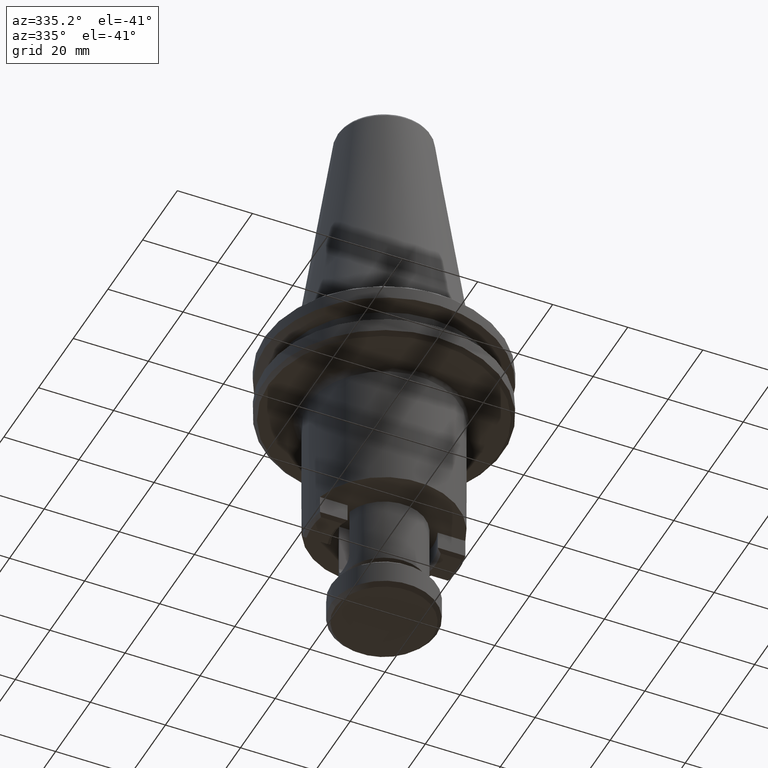
[diagram: clean part render]
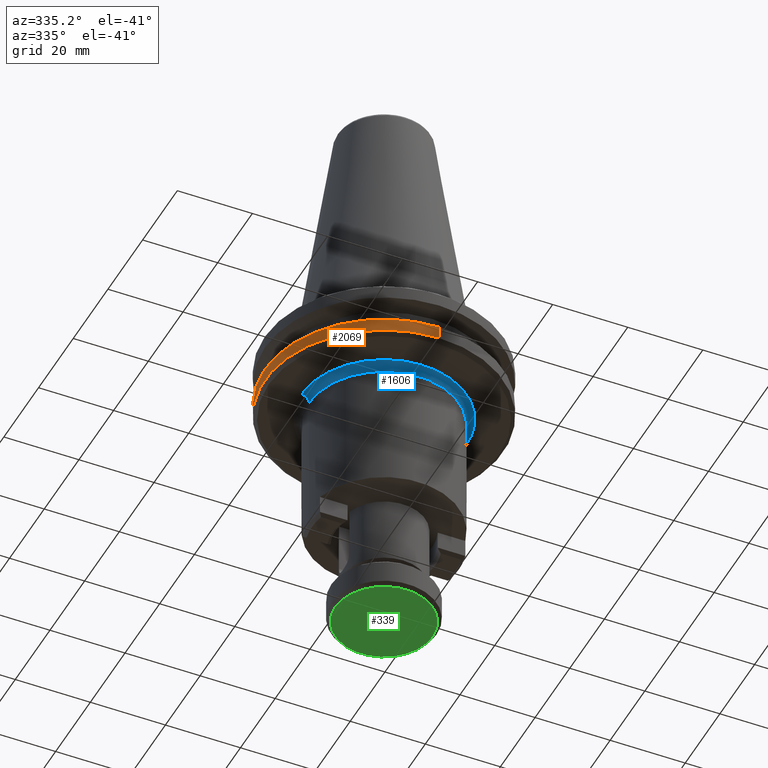
[diagram: same view with three faces highlighted in distinct colors, each labeled with its STEP entity id]
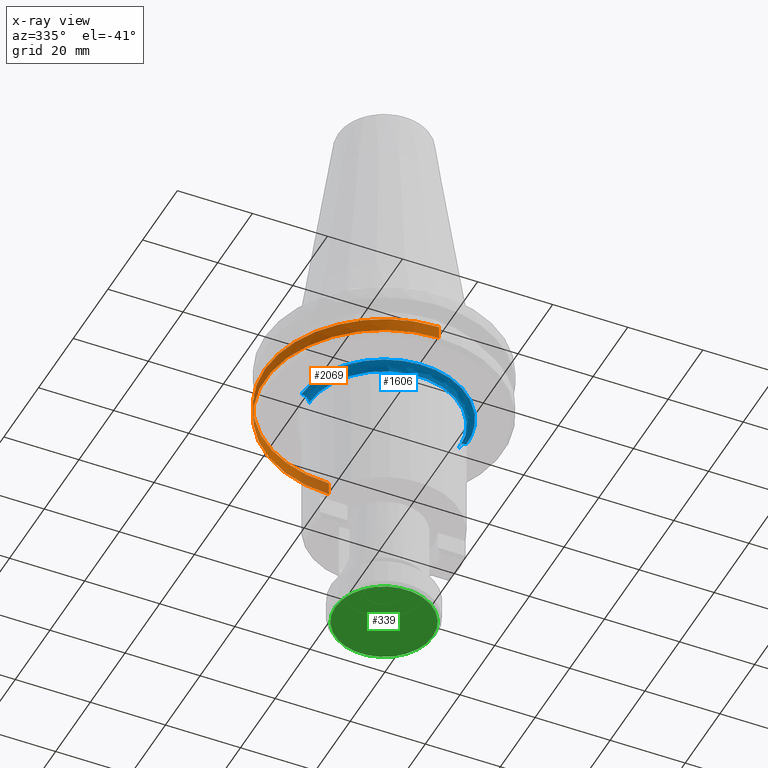
[diagram: x-ray of the same camera — body ghosted, the three highlighted faces saturated]
A machine part, auxiliary view with three faces highlighted in distinct colors.
The next image is the same camera in x-ray (body ghosted, the three faces saturated) — at least one of them is partly hidden behind the body in this view.
Their STEP definitions:

[orange] entity #2069 — the highlighted cylindrical surface (partial cylindrical patch) has radius 31.75 mm, axis along (0, -0, 1).
#8 = EDGE_CURVE ( 'NONE', #2531, #1006, #46, .T. ) ;
#27 = CIRCLE ( 'NONE', #694, 31.74999999990910000 ) ;
#41 = CARTESIAN_POINT ( 'NONE',  ( 73.31616413349898700, 117.8106910111748100, 72.64596896614378400 ) ) ;
#46 = CIRCLE ( 'NONE', #2822, 31.75000000000000000 ) ;
#172 = DIRECTION ( 'NONE',  ( -0.0000000000000000000, -2.997010603902405300E-017, 1.000000000000000000 ) ) ;
#267 = DIRECTION ( 'NONE',  ( 0.0000000000000000000, -1.000000000000000000, 0.0000000000000000000 ) ) ;
#317 = AXIS2_PLACEMENT_3D ( 'NONE', #448, #406, #536 ) ;
#406 = DIRECTION ( 'NONE',  ( 0.0000000000000000000, -5.463695987328526400E-017, 1.000000000000000000 ) ) ;
#421 = DIRECTION ( 'NONE',  ( -0.0000000000000000000, -2.997010603902405300E-017, 1.000000000000000000 ) ) ;
#435 = DIRECTION ( 'NONE',  ( 0.0000000000000000000, 1.000000000000000000, 0.0000000000000000000 ) ) ;
#448 = CARTESIAN_POINT ( 'NONE',  ( 73.31616413349898700, 86.06069101126570300, 69.16780560809130000 ) ) ;
#451 = CARTESIAN_POINT ( 'NONE',  ( 73.31616413349898700, 86.06069101126570300, 72.64596896614378400 ) ) ;
#507 = ORIENTED_EDGE ( 'NONE', *, *, #1408, .F. ) ;
#532 = ORIENTED_EDGE ( 'NONE', *, *, #1786, .T. ) ;
#536 = DIRECTION ( 'NONE',  ( 0.0000000000000000000, -1.000000000000000000, 0.0000000000000000000 ) ) ;
#628 = VERTEX_POINT ( 'NONE', #1771 ) ;
#654 = AXIS2_PLACEMENT_3D ( 'NONE', #828, #172, #435 ) ;
#694 = AXIS2_PLACEMENT_3D ( 'NONE', #451, #421, #2606 ) ;
#828 = CARTESIAN_POINT ( 'NONE',  ( 73.31616413349898700, 86.06069101126570300, 72.64596896614378400 ) ) ;
#847 = EDGE_CURVE ( 'NONE', #628, #1720, #27, .T. ) ;
#960 = CARTESIAN_POINT ( 'NONE',  ( 73.31616413349898700, 117.8106910112657000, 69.16780560809130000 ) ) ;
#1002 = VECTOR ( 'NONE', #1576, 1000.000000000000000 ) ;
#1006 = VERTEX_POINT ( 'NONE', #1492 ) ;
#1007 = LINE ( 'NONE', #1464, #1002 ) ;
#1017 = DIRECTION ( 'NONE',  ( 0.0000000000000000000, -5.463695987328526400E-017, 1.000000000000000000 ) ) ;
#1026 = ORIENTED_EDGE ( 'NONE', *, *, #847, .F. ) ;
#1142 = CARTESIAN_POINT ( 'NONE',  ( 73.31616413349898700, 54.31069101126570300, 69.16780560809130000 ) ) ;
#1292 = EDGE_CURVE ( 'NONE', #1744, #628, #1976, .T. ) ;
#1294 = VECTOR ( 'NONE', #1017, 1000.000000000000000 ) ;
#1363 = ORIENTED_EDGE ( 'NONE', *, *, #1292, .F. ) ;
#1391 = LINE ( 'NONE', #1142, #1294 ) ;
#1408 = EDGE_CURVE ( 'NONE', #2531, #1744, #1007, .T. ) ;
#1413 = DIRECTION ( 'NONE',  ( 0.0000000000000000000, -5.463695987328526400E-017, 1.000000000000000000 ) ) ;
#1457 = EDGE_LOOP ( 'NONE', ( #507, #1759, #532, #1026, #1363 ) ) ;
#1464 = CARTESIAN_POINT ( 'NONE',  ( 73.31616413349898700, 117.8106910112657000, 69.16780560809130000 ) ) ;
#1492 = CARTESIAN_POINT ( 'NONE',  ( 73.31616413349898700, 54.31069101126570300, 69.16780560809130000 ) ) ;
#1576 = DIRECTION ( 'NONE',  ( 0.0000000000000000000, -5.463695987328526400E-017, 1.000000000000000000 ) ) ;
#1586 = CARTESIAN_POINT ( 'NONE',  ( 73.31616413349898700, 86.06069101126570300, 69.16780560809130000 ) ) ;
#1720 = VERTEX_POINT ( 'NONE', #2261 ) ;
#1744 = VERTEX_POINT ( 'NONE', #41 ) ;
#1759 = ORIENTED_EDGE ( 'NONE', *, *, #8, .T. ) ;
#1771 = CARTESIAN_POINT ( 'NONE',  ( 41.56616413358990100, 86.06069101126570300, 72.64596896614378400 ) ) ;
#1786 = EDGE_CURVE ( 'NONE', #1006, #1720, #1391, .T. ) ;
#1976 = CIRCLE ( 'NONE', #654, 31.74999999990910000 ) ;
#2049 = FACE_OUTER_BOUND ( 'NONE', #1457, .T. ) ;
#2069 = ADVANCED_FACE ( 'NONE', ( #2049 ), #2126, .T. ) ;
#2126 = CYLINDRICAL_SURFACE ( 'NONE', #317, 31.75000000000000000 ) ;
#2261 = CARTESIAN_POINT ( 'NONE',  ( 73.31616413349898700, 54.31069101135661000, 72.64596896614378400 ) ) ;
#2531 = VERTEX_POINT ( 'NONE', #960 ) ;
#2606 = DIRECTION ( 'NONE',  ( 0.0000000000000000000, 1.000000000000000000, 0.0000000000000000000 ) ) ;
#2822 = AXIS2_PLACEMENT_3D ( 'NONE', #1586, #1413, #267 ) ;

[blue] entity #1606 — the highlighted face is a freeform B-spline surface patch.
#76 = VERTEX_POINT ( 'NONE', #1653 ) ;
#242 = CIRCLE ( 'NONE', #463, 20.00000000000000400 ) ;
#376 = VERTEX_POINT ( 'NONE', #2444 ) ;
#410 = CARTESIAN_POINT ( 'NONE',  ( 95.31616413349898700, 86.06069101126570300, 66.16780560809130000 ) ) ;
#463 = AXIS2_PLACEMENT_3D ( 'NONE', #600, #1871, #1341 ) ;
#469 = DIRECTION ( 'NONE',  ( -1.224646799147353200E-016, -1.000000000000000000, 0.0000000000000000000 ) ) ;
#518 = CARTESIAN_POINT ( 'NONE',  ( 51.31616413349898700, 86.06069101126571800, 66.16780560809130000 ) ) ;
#531 = DIRECTION ( 'NONE',  ( -1.000000000000000000, 0.0000000000000000000, 0.0000000000000000000 ) ) ;
#591 = VERTEX_POINT ( 'NONE', #1512 ) ;
#600 = CARTESIAN_POINT ( 'NONE',  ( 73.31616413349898700, 86.06069101126570300, 66.16780560809130000 ) ) ;
#850 = EDGE_CURVE ( 'NONE', #1499, #376, #930, .T. ) ;
#859 =( BOUNDED_SURFACE ( )  B_SPLINE_SURFACE ( 3, 3, ( 
 ( #1081, #1087, #2724, #1059 ),
 ( #2733, #1036, #1044, #1014 ),
 ( #1029, #997, #1010, #984 ),
 ( #987, #1526, #972, #963 ) ),
 .UNSPECIFIED., .F., .F., .F. ) 
 B_SPLINE_SURFACE_WITH_KNOTS ( ( 4, 4 ),
 ( 4, 4 ),
 ( 0.0000000000000000000, 1.000000000000000000 ),
 ( 0.0000000000000000000, 1.000000000000000000 ),
 .UNSPECIFIED. ) 
 GEOMETRIC_REPRESENTATION_ITEM ( )  RATIONAL_B_SPLINE_SURFACE ( (
 ( 1.000000000000000000, 0.3333333333333334300, 0.3333333333333334300, 1.000000000000000000),
 ( 0.8047378548504673400, 0.2682459516168225200, 0.2682459516168225200, 0.8047378548504673400),
 ( 0.8047378548504673400, 0.2682459516168225200, 0.2682459516168225200, 0.8047378548504673400),
 ( 1.000000000000000000, 0.3333333333333334300, 0.3333333333333334300, 1.000000000000000000) ) ) 
 REPRESENTATION_ITEM ( '' )  SURFACE ( )  );
#930 = B_SPLINE_CURVE_WITH_KNOTS ( 'NONE', 3,
 ( #2123, #1196, #2306, #2316, #2333, #2360, #2362, #2365, #2366, #2372, #2375, #2387, #2397, #2399, #2403, #2404, #2413, #2415, #2421, #2440, #2459, #2470, #2477, #2481, #2489, #2495, #2502, #2506, #2515, #2539, #2559, #2568, #2592, #2585, #2579, #2287, #2279, #2228, #2230, #2240, #2243, #2249, #2253, #2256, #2260, #2264, #2268, #2222, #2169, #2176, #2179, #2184, #2187, #2195, #2200, #2219, #2211, #2208, #2168, #2159, #2158, #2149, #2143, #2140, #2130, #2090, #2127, #2115, #2105, #2081, #2073, #2060, #2047, #2043, #2037, #2034, #2027, #2018, #2009, #1995, #1994, #1987, #1985, #1974, #1957, #1955, #1950, #1945, #1941, #1939, #1936, #1932, #1923, #1921, #1917, #1914, #1910, #1909, #1905, #1897, #1887, #1879, #1872, #1860, #1853, #1846 ),
 .UNSPECIFIED., .F., .F.,
 ( 4, 1, 1, 1, 1, 1, 2, 2, 1, 1, 1, 1, 2, 2, 1, 1, 1, 2, 2, 2, 1, 1, 1, 2, 2, 1, 1, 1, 1, 2, 2, 1, 1, 1, 1, 1, 2, 2, 2, 1, 1, 1, 1, 1, 2, 2, 1, 1, 1, 1, 2, 2, 1, 1, 1, 2, 2, 2, 1, 1, 1, 2, 2, 1, 1, 1, 1, 2, 2, 1, 1, 1, 1, 1, 2, 2, 4 ),
 ( 0.0000000000000000000, 0.03125000000001063700, 0.04687500000001597300, 0.05468750000001865900, 0.05859375000002028900, 0.06054687500002142700, 0.06152343750002202400, 0.06250000000002262100, 0.09375000000003694300, 0.1093750000000437600, 0.1171875000000468700, 0.1210937500000484800, 0.1230468750000493400, 0.1250000000000502100, 0.1562500000000613700, 0.1718750000000670300, 0.1796875000000698600, 0.1835937500000713600, 0.1875000000000728600, 0.2500000000000947600, 0.2812500000001056400, 0.2968750000001111300, 0.3046875000001139600, 0.3085937500001152400, 0.3125000000001165200, 0.3437500000001259000, 0.3593750000001305600, 0.3671875000001327800, 0.3710937500001338900, 0.3730468750001340600, 0.3750000000001342300, 0.4062500000001361700, 0.4218750000001367800, 0.4296875000001371100, 0.4335937500001370600, 0.4355468750001372800, 0.4365234375001373900, 0.4375000000001375000, 0.5000000000001383300, 0.5312500000001387800, 0.5468750000001393300, 0.5546875000001395600, 0.5585937500001396700, 0.5605468750001394400, 0.5615234375001394400, 0.5625000000001394400, 0.5937500000001317800, 0.6093750000001283400, 0.6171875000001263400, 0.6210937500001256800, 0.6230468750001252300, 0.6250000000001247900, 0.6562500000001121300, 0.6718750000001058000, 0.6796875000001022500, 0.6835937500001004800, 0.6875000000000987000, 0.7500000000000699400, 0.7812500000000558400, 0.7968750000000489600, 0.8046875000000455200, 0.8085937500000437400, 0.8125000000000419700, 0.8437500000000309800, 0.8593750000000254200, 0.8671875000000223200, 0.8710937500000207600, 0.8730468750000199800, 0.8750000000000192100, 0.9062500000000082200, 0.9218750000000023300, 0.9296874999999994400, 0.9335937499999983300, 0.9355468749999980000, 0.9365234374999978900, 0.9374999999999977800, 1.000000000000000000 ),
 .UNSPECIFIED. ) ;
#963 = CARTESIAN_POINT ( 'NONE',  ( 95.31616412733780000, 86.06069101126568900, 68.16780560809130000 ) ) ;
#972 = CARTESIAN_POINT ( 'NONE',  ( 95.31616412733778500, 42.06069102358808500, 68.16780560809130000 ) ) ;
#984 = CARTESIAN_POINT ( 'NONE',  ( 94.14459125494563800, 86.06069101126568900, 68.16780560448215500 ) ) ;
#987 = CARTESIAN_POINT ( 'NONE',  ( 51.31616413966016700, 86.06069101126571800, 68.16780560809130000 ) ) ;
#997 = CARTESIAN_POINT ( 'NONE',  ( 52.48773701205229300, 44.40383676837239300, 68.16780560448215500 ) ) ;
#1010 = CARTESIAN_POINT ( 'NONE',  ( 94.14459125494562400, 44.40383676837239300, 68.16780560448215500 ) ) ;
#1014 = CARTESIAN_POINT ( 'NONE',  ( 93.31616413349900100, 86.06069101126568900, 67.33937848048343300 ) ) ;
#1029 = CARTESIAN_POINT ( 'NONE',  ( 52.48773701205232100, 86.06069101126573200, 68.16780560448215500 ) ) ;
#1036 = CARTESIAN_POINT ( 'NONE',  ( 53.31616413349894400, 46.06069101126568900, 67.33937848048343300 ) ) ;
#1044 = CARTESIAN_POINT ( 'NONE',  ( 93.31616413349897200, 46.06069101126568900, 67.33937848048343300 ) ) ;
#1059 = CARTESIAN_POINT ( 'NONE',  ( 93.31616413349900100, 86.06069101126568900, 66.16780560809130000 ) ) ;
#1081 = CARTESIAN_POINT ( 'NONE',  ( 53.31616413349898000, 86.06069101126571800, 66.16780560809130000 ) ) ;
#1087 = CARTESIAN_POINT ( 'NONE',  ( 53.31616413349895100, 46.06069101126570300, 66.16780560809128500 ) ) ;
#1151 = ORIENTED_EDGE ( 'NONE', *, *, #2177, .F. ) ;
#1196 = CARTESIAN_POINT ( 'NONE',  ( 51.31616414619812600, 85.38796585783755700, 68.16780560809130000 ) ) ;
#1264 = CARTESIAN_POINT ( 'NONE',  ( 51.31616414212462700, 86.06069101126570300, 68.16780560809130000 ) ) ;
#1288 = CIRCLE ( 'NONE', #2617, 1.999999999999994900 ) ;
#1311 = EDGE_LOOP ( 'NONE', ( #1549, #1151, #2830, #1667 ) ) ;
#1341 = DIRECTION ( 'NONE',  ( 1.000000000000000000, 0.0000000000000000000, 0.0000000000000000000 ) ) ;
#1499 = VERTEX_POINT ( 'NONE', #1264 ) ;
#1512 = CARTESIAN_POINT ( 'NONE',  ( 53.31616413349899400, 86.06069101126570300, 66.16780560809130000 ) ) ;
#1526 = CARTESIAN_POINT ( 'NONE',  ( 51.31616413966014500, 42.06069102358808500, 68.16780560809130000 ) ) ;
#1549 = ORIENTED_EDGE ( 'NONE', *, *, #1770, .F. ) ;
#1568 = FACE_OUTER_BOUND ( 'NONE', #1311, .T. ) ;
#1606 = ADVANCED_FACE ( 'NONE', ( #1568 ), #859, .F. ) ;
#1653 = CARTESIAN_POINT ( 'NONE',  ( 93.31616413349900100, 86.06069101126570300, 66.16780560809130000 ) ) ;
#1667 = ORIENTED_EDGE ( 'NONE', *, *, #850, .F. ) ;
#1682 = DIRECTION ( 'NONE',  ( 1.000000000000000000, 0.0000000000000000000, 0.0000000000000000000 ) ) ;
#1770 = EDGE_CURVE ( 'NONE', #591, #1499, #1288, .T. ) ;
#1835 = AXIS2_PLACEMENT_3D ( 'NONE', #410, #2614, #1682 ) ;
#1846 = CARTESIAN_POINT ( 'NONE',  ( 95.31616412487333900, 86.06069101126570300, 68.16780560809130000 ) ) ;
#1853 = CARTESIAN_POINT ( 'NONE',  ( 95.31616412042282600, 84.71488516390701300, 68.16780560809128500 ) ) ;
#1860 = CARTESIAN_POINT ( 'NONE',  ( 95.19373682153410200, 83.38048944771277600, 68.16780560809130000 ) ) ;
#1871 = DIRECTION ( 'NONE',  ( 0.0000000000000000000, -0.0000000000000000000, -1.000000000000000000 ) ) ;
#1872 = CARTESIAN_POINT ( 'NONE',  ( 94.94505637143200300, 82.03683221291680600, 68.16780560809128500 ) ) ;
#1879 = CARTESIAN_POINT ( 'NONE',  ( 94.94073253526468600, 82.01365434632252500, 68.16780560809128500 ) ) ;
#1887 = CARTESIAN_POINT ( 'NONE',  ( 94.93248564982910400, 81.96983304283564600, 68.16780560809131400 ) ) ;
#1893 = CIRCLE ( 'NONE', #1835, 1.999999999999988000 ) ;
#1897 = CARTESIAN_POINT ( 'NONE',  ( 94.92001812548599600, 81.90412930047874300, 68.16780560809131400 ) ) ;
#1905 = CARTESIAN_POINT ( 'NONE',  ( 94.89024686202381500, 81.75101805842727700, 68.16780560809130000 ) ) ;
#1909 = CARTESIAN_POINT ( 'NONE',  ( 94.82798284178622300, 81.44558553478216800, 68.16780560809131400 ) ) ;
#1910 = CARTESIAN_POINT ( 'NONE',  ( 94.69256882805832700, 80.83788032932356800, 68.16780560809130000 ) ) ;
#1914 = CARTESIAN_POINT ( 'NONE',  ( 94.37819690759205600, 79.63510928573302300, 68.16780560809132800 ) ) ;
#1917 = CARTESIAN_POINT ( 'NONE',  ( 94.03408858774561500, 78.62583016378671600, 68.16780560809130000 ) ) ;
#1921 = CARTESIAN_POINT ( 'NONE',  ( 93.75509537636962400, 77.92115598786291700, 68.16780560809131400 ) ) ;
#1923 = CARTESIAN_POINT ( 'NONE',  ( 93.73715941422176500, 77.87624950966343800, 68.16780560809132800 ) ) ;
#1932 = CARTESIAN_POINT ( 'NONE',  ( 93.70242243426292800, 77.79009463341350300, 68.16780560809130000 ) ) ;
#1936 = CARTESIAN_POINT ( 'NONE',  ( 93.64992731188880300, 77.66106534310148400, 68.16780560809130000 ) ) ;
#1939 = CARTESIAN_POINT ( 'NONE',  ( 93.52471112596457200, 77.36141816747985400, 68.16780560809131400 ) ) ;
#1941 = CARTESIAN_POINT ( 'NONE',  ( 93.26336848591100200, 76.76780848999511900, 68.16780560809130000 ) ) ;
#1945 = CARTESIAN_POINT ( 'NONE',  ( 92.69704213298361100, 75.60332783006025200, 68.16780560809130000 ) ) ;
#1950 = CARTESIAN_POINT ( 'NONE',  ( 92.13680627706806100, 74.64418217017534100, 68.16780560809130000 ) ) ;
#1955 = CARTESIAN_POINT ( 'NONE',  ( 91.67922275128539400, 73.94431323529127600, 68.16780560809128500 ) ) ;
#1957 = CARTESIAN_POINT ( 'NONE',  ( 91.62567704646208700, 73.86352616708623500, 68.16780560809128500 ) ) ;
#1974 = CARTESIAN_POINT ( 'NONE',  ( 91.51986843569397900, 73.70613504594621200, 68.16780560809130000 ) ) ;
#1985 = CARTESIAN_POINT ( 'NONE',  ( 91.35973522757291200, 73.47120752628823900, 68.16780560809130000 ) ) ;
#1987 = CARTESIAN_POINT ( 'NONE',  ( 90.97614903150781600, 72.93115744811775900, 68.16780560809130000 ) ) ;
#1994 = CARTESIAN_POINT ( 'NONE',  ( 90.16920846424756100, 71.88351382923554000, 68.16780560809131400 ) ) ;
#1995 = CARTESIAN_POINT ( 'NONE',  ( 89.40937110637281600, 71.04117336298020300, 68.16780560809131400 ) ) ;
#2009 = CARTESIAN_POINT ( 'NONE',  ( 87.79879770461161600, 69.43067880180382200, 68.16780560809128500 ) ) ;
#2018 = CARTESIAN_POINT ( 'NONE',  ( 86.62571452955732800, 68.47765650206410700, 68.16780560809131400 ) ) ;
#2027 = CARTESIAN_POINT ( 'NONE',  ( 85.27534520692849200, 67.59486061527151400, 68.16780560809128500 ) ) ;
#2034 = CARTESIAN_POINT ( 'NONE',  ( 85.19890591984270100, 67.54558505573004400, 68.16780560809127100 ) ) ;
#2037 = CARTESIAN_POINT ( 'NONE',  ( 85.04222836770186700, 67.44594271399900300, 68.16780560809130000 ) ) ;
#2043 = CARTESIAN_POINT ( 'NONE',  ( 84.80640726400190500, 67.29804158902419400, 68.16780560809131400 ) ) ;
#2047 = CARTESIAN_POINT ( 'NONE',  ( 84.25052459361468500, 66.96387567743507000, 68.16780560809131400 ) ) ;
#2060 = CARTESIAN_POINT ( 'NONE',  ( 83.11622553915776700, 66.33929070766539800, 68.16780560809131400 ) ) ;
#2073 = CARTESIAN_POINT ( 'NONE',  ( 82.10533998331024500, 65.87892676799188500, 68.16780560809130000 ) ) ;
#2081 = CARTESIAN_POINT ( 'NONE',  ( 81.37105447017526700, 65.58824976348250900, 68.16780560809131400 ) ) ;
#2090 = CARTESIAN_POINT ( 'NONE',  ( 80.83156378552594400, 65.38277225506550400, 68.16780560809130000 ) ) ;
#2105 = CARTESIAN_POINT ( 'NONE',  ( 81.33126589365916500, 65.57264332490002800, 68.16780560809135600 ) ) ;
#2107 = EDGE_CURVE ( 'NONE', #76, #376, #1893, .T. ) ;
#2115 = CARTESIAN_POINT ( 'NONE',  ( 81.24817317067477500, 65.54032759280599400, 68.16780560809131400 ) ) ;
#2123 = CARTESIAN_POINT ( 'NONE',  ( 51.31616414212462700, 86.06069101126570300, 68.16780560809130000 ) ) ;
#2127 = CARTESIAN_POINT ( 'NONE',  ( 81.12342320520851000, 65.49224334847753000, 68.16780560809131400 ) ) ;
#2130 = CARTESIAN_POINT ( 'NONE',  ( 80.24474027844912900, 65.17473197499269600, 68.16780560809130000 ) ) ;
#2140 = CARTESIAN_POINT ( 'NONE',  ( 79.05867459344858600, 64.80225904185178400, 68.16780560809131400 ) ) ;
#2143 = CARTESIAN_POINT ( 'NONE',  ( 78.02075771342480000, 64.55775245973913500, 68.16780560809130000 ) ) ;
#2149 = CARTESIAN_POINT ( 'NONE',  ( 77.29743233131444000, 64.42391732004041700, 68.16780560809130000 ) ) ;
#2158 = CARTESIAN_POINT ( 'NONE',  ( 77.27798873890277800, 64.42035010817591000, 68.16780560809131400 ) ) ;
#2159 = CARTESIAN_POINT ( 'NONE',  ( 77.23661822726421600, 64.41281697820076600, 68.16780560809130000 ) ) ;
#2168 = CARTESIAN_POINT ( 'NONE',  ( 77.17455449155239900, 64.40160697542134500, 68.16780560809130000 ) ) ;
#2169 = CARTESIAN_POINT ( 'NONE',  ( 69.22530616485448700, 64.44436950496626100, 68.16780560809131400 ) ) ;
#2176 = CARTESIAN_POINT ( 'NONE',  ( 69.26912746834575800, 64.43612261955539100, 68.16780560809132800 ) ) ;
#2177 = EDGE_CURVE ( 'NONE', #76, #591, #242, .T. ) ;
#2179 = CARTESIAN_POINT ( 'NONE',  ( 69.29230807420532300, 64.43179827642576600, 68.16780560809131400 ) ) ;
#2184 = CARTESIAN_POINT ( 'NONE',  ( 70.63578725704327600, 64.18315078048115700, 68.16780560809131400 ) ) ;
#2187 = CARTESIAN_POINT ( 'NONE',  ( 71.97088909457498600, 64.06072346531796300, 68.16780560809128500 ) ) ;
#2195 = CARTESIAN_POINT ( 'NONE',  ( 73.98880165296097300, 64.06067482120659000, 68.16780560809128500 ) ) ;
#2200 = CARTESIAN_POINT ( 'NONE',  ( 74.99367818615606000, 64.10657289698170300, 68.16780560809130000 ) ) ;
#2208 = CARTESIAN_POINT ( 'NONE',  ( 77.02968333044758300, 64.37607814755210700, 68.16780560809128500 ) ) ;
#2211 = CARTESIAN_POINT ( 'NONE',  ( 76.73971789712872700, 64.32753187294520100, 68.16780560809131400 ) ) ;
#2219 = CARTESIAN_POINT ( 'NONE',  ( 76.15889458605390400, 64.24048484825668500, 68.16780560809131400 ) ) ;
#2222 = CARTESIAN_POINT ( 'NONE',  ( 69.15960242249096300, 64.45683702927227900, 68.16780560809131400 ) ) ;
#2228 = CARTESIAN_POINT ( 'NONE',  ( 64.61689128872426100, 65.85214402624522700, 68.16780560809130000 ) ) ;
#2230 = CARTESIAN_POINT ( 'NONE',  ( 64.91653846440931400, 65.72692784049101500, 68.16780560809131400 ) ) ;
#2240 = CARTESIAN_POINT ( 'NONE',  ( 65.04556775474752300, 65.67443271819021800, 68.16780560809131400 ) ) ;
#2243 = CARTESIAN_POINT ( 'NONE',  ( 65.13172263101459700, 65.63969573828035200, 68.16780560809130000 ) ) ;
#2249 = CARTESIAN_POINT ( 'NONE',  ( 65.17662910922160800, 65.62175977615859800, 68.16780560809130000 ) ) ;
#2253 = CARTESIAN_POINT ( 'NONE',  ( 65.88130328530553500, 65.34276656517431500, 68.16780560809130000 ) ) ;
#2256 = CARTESIAN_POINT ( 'NONE',  ( 66.89058240744736800, 64.99865824589109300, 68.16780560809130000 ) ) ;
#2260 = CARTESIAN_POINT ( 'NONE',  ( 68.09335345121242300, 64.68428632609972300, 68.16780560809131400 ) ) ;
#2264 = CARTESIAN_POINT ( 'NONE',  ( 68.70105865674479200, 64.54887231271375500, 68.16780560809130000 ) ) ;
#2268 = CARTESIAN_POINT ( 'NONE',  ( 69.00649118042355200, 64.48660829264824200, 68.16780560809132800 ) ) ;
#2279 = CARTESIAN_POINT ( 'NONE',  ( 64.02328161110351300, 66.11348666596292400, 68.16780560809130000 ) ) ;
#2287 = CARTESIAN_POINT ( 'NONE',  ( 62.85880095085977400, 66.67981301823547800, 68.16780560809131400 ) ) ;
#2306 = CARTESIAN_POINT ( 'NONE',  ( 51.36207438356397900, 84.38302359919359200, 68.16780560809130000 ) ) ;
#2316 = CARTESIAN_POINT ( 'NONE',  ( 51.49597924155865800, 83.21784553923093600, 68.16780560809130000 ) ) ;
#2333 = CARTESIAN_POINT ( 'NONE',  ( 51.58301739915630400, 82.63707015303010900, 68.16780560809131400 ) ) ;
#2360 = CARTESIAN_POINT ( 'NONE',  ( 51.63155791010518700, 82.34713587087480800, 68.16780560809130000 ) ) ;
#2362 = CARTESIAN_POINT ( 'NONE',  ( 51.65708352361714600, 82.20228208253347200, 68.16780560809131400 ) ) ;
#2365 = CARTESIAN_POINT ( 'NONE',  ( 51.66829207755888800, 82.14022617740207000, 68.16780560809130000 ) ) ;
#2366 = CARTESIAN_POINT ( 'NONE',  ( 51.67582422580753800, 82.09886097173048800, 68.16780560809130000 ) ) ;
#2372 = CARTESIAN_POINT ( 'NONE',  ( 51.67939043218157000, 82.07942281365289700, 68.16780560809130000 ) ) ;
#2375 = CARTESIAN_POINT ( 'NONE',  ( 51.81322557227623800, 81.35609743164505400, 68.16780560809130000 ) ) ;
#2387 = CARTESIAN_POINT ( 'NONE',  ( 52.05773215496353100, 80.31818055177832600, 68.16780560809131400 ) ) ;
#2397 = CARTESIAN_POINT ( 'NONE',  ( 52.43020508877268100, 79.13211486697467500, 68.16780560809131400 ) ) ;
#2399 = CARTESIAN_POINT ( 'NONE',  ( 52.63824536917903200, 78.54529135999973700, 68.16780560809130000 ) ) ;
#2403 = CARTESIAN_POINT ( 'NONE',  ( 52.74771646275764400, 78.25343194036898400, 68.16780560809130000 ) ) ;
#2404 = CARTESIAN_POINT ( 'NONE',  ( 52.79580070715755400, 78.12868197492514400, 68.16780560809130000 ) ) ;
#2413 = CARTESIAN_POINT ( 'NONE',  ( 52.82811643929915100, 78.04558925195569000, 68.16780560809128500 ) ) ;
#2415 = CARTESIAN_POINT ( 'NONE',  ( 52.84372287790456100, 78.00580067544646600, 68.16780560809130000 ) ) ;
#2421 = CARTESIAN_POINT ( 'NONE',  ( 53.13439988283308000, 77.27151516244985900, 68.16780560809131400 ) ) ;
#2440 = CARTESIAN_POINT ( 'NONE',  ( 53.59476382307832400, 76.26062960684295400, 68.16780560809130000 ) ) ;
#2444 = CARTESIAN_POINT ( 'NONE',  ( 95.31616412487333900, 86.06069101126570300, 68.16780560809130000 ) ) ;
#2459 = CARTESIAN_POINT ( 'NONE',  ( 54.21934879348007300, 75.12633055274589800, 68.16780560809130000 ) ) ;
#2470 = CARTESIAN_POINT ( 'NONE',  ( 54.55351470537654300, 74.57044788255844000, 68.16780560809131400 ) ) ;
#2477 = CARTESIAN_POINT ( 'NONE',  ( 54.70141583048121700, 74.33462677894834800, 68.16780560809130000 ) ) ;
#2481 = CARTESIAN_POINT ( 'NONE',  ( 54.80105817229839700, 74.17794922686833600, 68.16780560809130000 ) ) ;
#2489 = CARTESIAN_POINT ( 'NONE',  ( 54.85033373187769700, 74.10150993981908100, 68.16780560809130000 ) ) ;
#2495 = CARTESIAN_POINT ( 'NONE',  ( 55.73312961948069200, 72.75114061762738500, 68.16780560809130000 ) ) ;
#2502 = CARTESIAN_POINT ( 'NONE',  ( 56.68615191978088300, 71.57805744320353400, 68.16780560809131400 ) ) ;
#2506 = CARTESIAN_POINT ( 'NONE',  ( 58.29664648192790100, 69.96748404228034700, 68.16780560809130000 ) ) ;
#2515 = CARTESIAN_POINT ( 'NONE',  ( 59.13898694862600500, 69.20764668486135900, 68.16780560809127100 ) ) ;
#2539 = CARTESIAN_POINT ( 'NONE',  ( 60.18663056795018200, 68.40070611819723500, 68.16780560809130000 ) ) ;
#2559 = CARTESIAN_POINT ( 'NONE',  ( 60.72668064632302500, 68.01711992244634100, 68.16780560809128500 ) ) ;
#2568 = CARTESIAN_POINT ( 'NONE',  ( 60.96160816606371900, 67.85698671446334600, 68.16780560809131400 ) ) ;
#2579 = CARTESIAN_POINT ( 'NONE',  ( 61.89965529064682000, 67.24004887361832100, 68.16780560809131400 ) ) ;
#2585 = CARTESIAN_POINT ( 'NONE',  ( 61.19978635548509500, 67.69763239901591600, 68.16780560809130000 ) ) ;
#2592 = CARTESIAN_POINT ( 'NONE',  ( 61.11899928725800600, 67.75117810378805000, 68.16780560809131400 ) ) ;
#2614 = DIRECTION ( 'NONE',  ( 0.0000000000000000000, 1.000000000000000000, 0.0000000000000000000 ) ) ;
#2617 = AXIS2_PLACEMENT_3D ( 'NONE', #518, #469, #531 ) ;
#2724 = CARTESIAN_POINT ( 'NONE',  ( 93.31616413349897200, 46.06069101126568900, 66.16780560809128500 ) ) ;
#2733 = CARTESIAN_POINT ( 'NONE',  ( 53.31616413349898000, 86.06069101126573200, 67.33937848048343300 ) ) ;
#2830 = ORIENTED_EDGE ( 'NONE', *, *, #2107, .T. ) ;

[green] entity #339 — the highlighted planar face has unit normal (0, 0, -1).
#3 = DIRECTION ( 'NONE',  ( 1.000000000000000000, 0.0000000000000000000, 0.0000000000000000000 ) ) ;
#11 = DIRECTION ( 'NONE',  ( 0.0000000000000000000, -0.0000000000000000000, 1.000000000000000000 ) ) ;
#12 = CARTESIAN_POINT ( 'NONE',  ( 73.31616413349898700, 86.06069101126570300, 3.267805608091340000 ) ) ;
#339 = ADVANCED_FACE ( 'NONE', ( #2636 ), #405, .T. ) ;
#349 = DIRECTION ( 'NONE',  ( 1.000000000000000000, 0.0000000000000000000, 0.0000000000000000000 ) ) ;
#379 = AXIS2_PLACEMENT_3D ( 'NONE', #12, #11, #3 ) ;
#405 = PLANE ( 'NONE',  #2031 ) ;
#697 = CARTESIAN_POINT ( 'NONE',  ( 60.31616413349899400, 86.06069101126570300, 3.267805608091340000 ) ) ;
#727 = EDGE_LOOP ( 'NONE', ( #1319, #2057 ) ) ;
#1319 = ORIENTED_EDGE ( 'NONE', *, *, #1743, .F. ) ;
#1494 = CIRCLE ( 'NONE', #379, 12.99999999999999800 ) ;
#1743 = EDGE_CURVE ( 'NONE', #2309, #2576, #1494, .T. ) ;
#1999 = CARTESIAN_POINT ( 'NONE',  ( 86.31616413349898700, 86.06069101126570300, 3.267805608091340000 ) ) ;
#2031 = AXIS2_PLACEMENT_3D ( 'NONE', #2052, #2786, #2627 ) ;
#2052 = CARTESIAN_POINT ( 'NONE',  ( 73.31616413349898700, 86.06069101126570300, 3.267805608091340000 ) ) ;
#2057 = ORIENTED_EDGE ( 'NONE', *, *, #2768, .F. ) ;
#2233 = DIRECTION ( 'NONE',  ( 0.0000000000000000000, -0.0000000000000000000, 1.000000000000000000 ) ) ;
#2309 = VERTEX_POINT ( 'NONE', #1999 ) ;
#2348 = CIRCLE ( 'NONE', #2776, 12.99999999999999800 ) ;
#2460 = CARTESIAN_POINT ( 'NONE',  ( 73.31616413349898700, 86.06069101126570300, 3.267805608091340000 ) ) ;
#2576 = VERTEX_POINT ( 'NONE', #697 ) ;
#2627 = DIRECTION ( 'NONE',  ( -1.000000000000000000, 0.0000000000000000000, -0.0000000000000000000 ) ) ;
#2636 = FACE_OUTER_BOUND ( 'NONE', #727, .T. ) ;
#2768 = EDGE_CURVE ( 'NONE', #2576, #2309, #2348, .T. ) ;
#2776 = AXIS2_PLACEMENT_3D ( 'NONE', #2460, #2233, #349 ) ;
#2786 = DIRECTION ( 'NONE',  ( 0.0000000000000000000, 0.0000000000000000000, -1.000000000000000000 ) ) ;